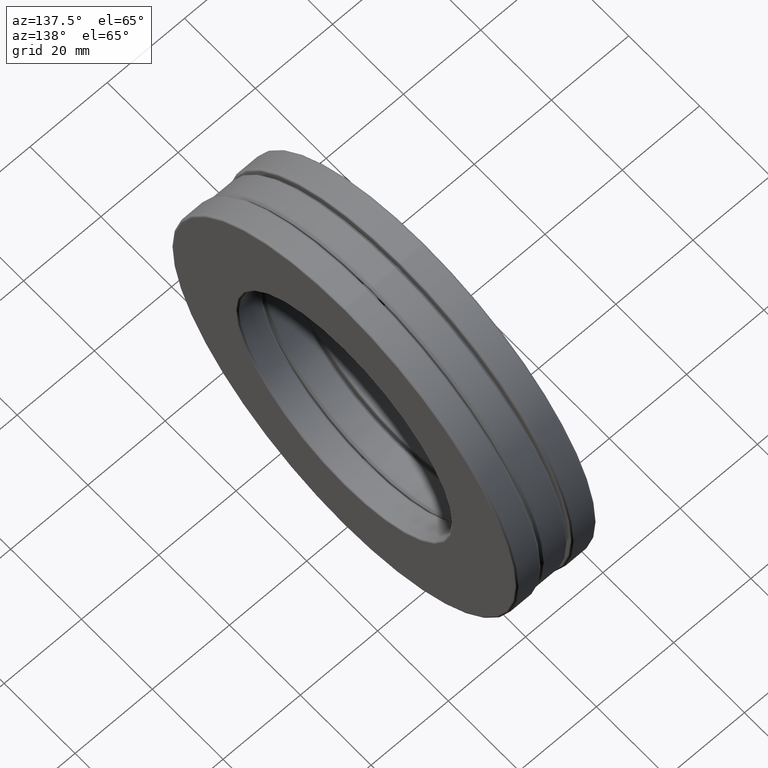
[diagram: clean part render]
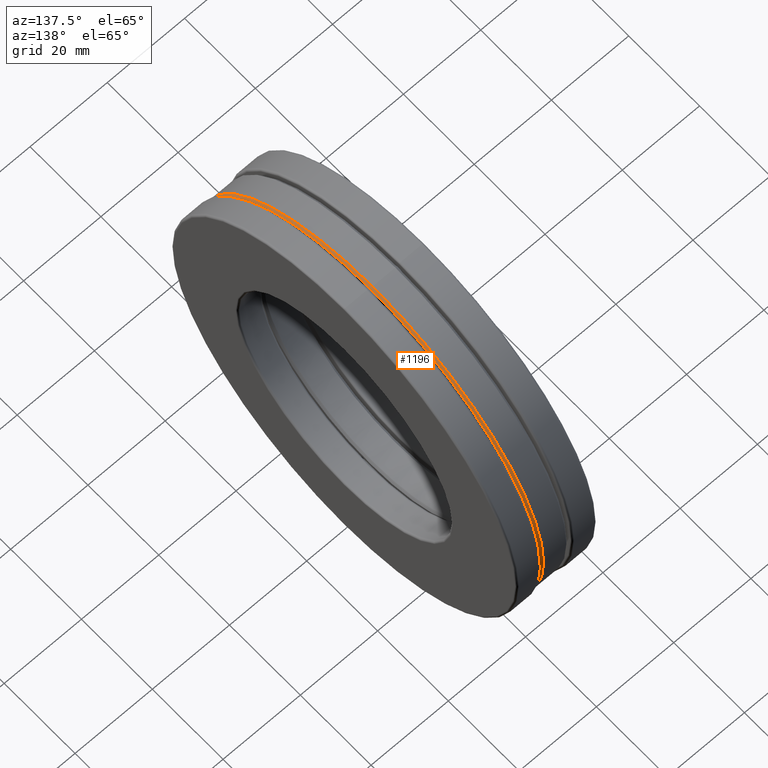
[diagram: same view with one face highlighted and labeled with its STEP entity id]
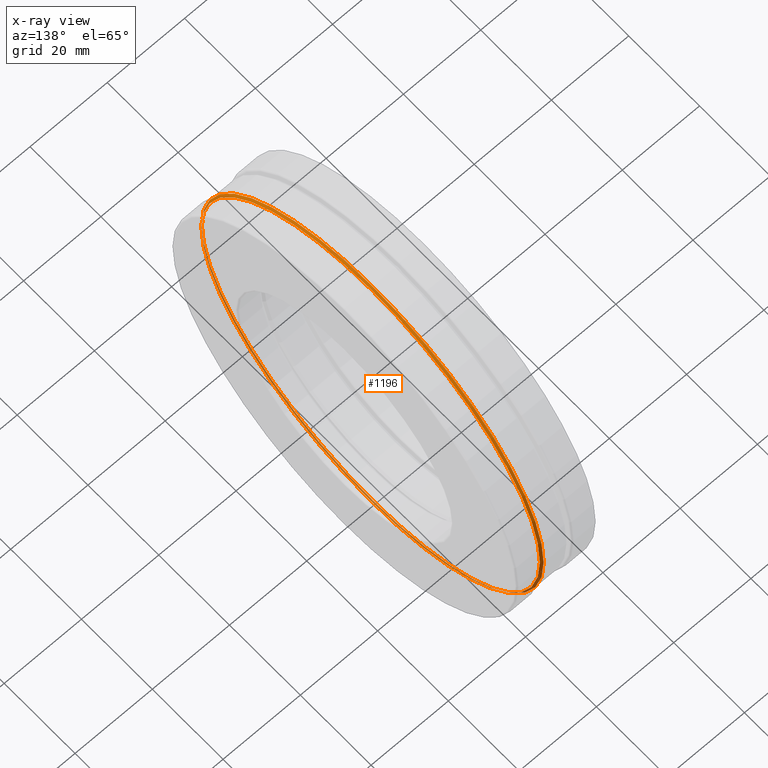
[diagram: x-ray of the same camera — body ghosted, the highlighted face saturated]
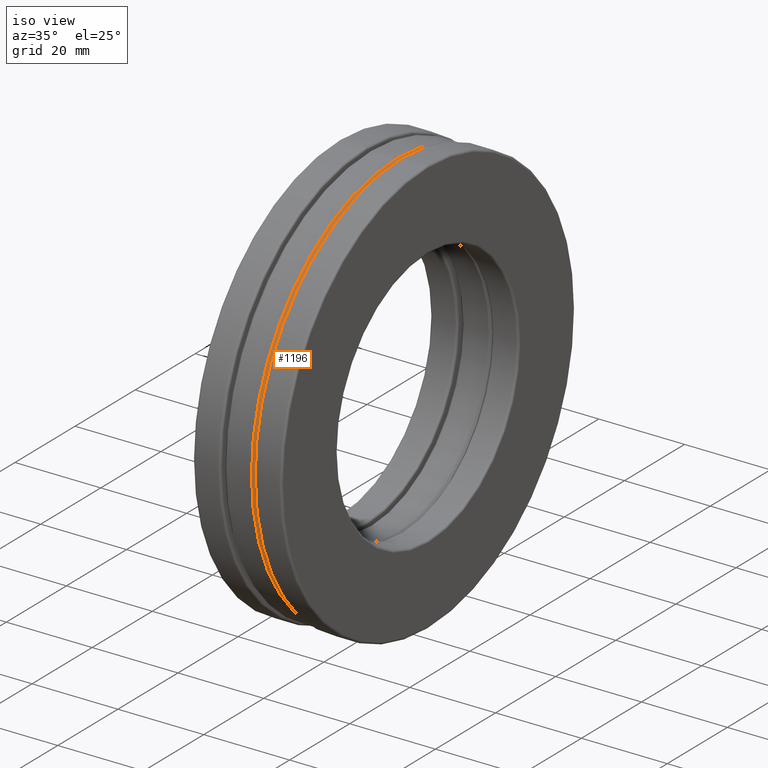
[diagram: same view with one face highlighted and labeled with its STEP entity id]
A machine part, auxiliary view. The second image highlights one B-rep face of the part: STEP entity #1196.
The next image is the same camera in x-ray: the body ghosted, the highlighted face saturated — about 29% of this face is hidden behind the body in this view.
A second angle (iso view) of the same face is appended — the face is thin or edge-on in the first view.
In plain terms, the highlighted conical surface has half-angle 45 deg.
Its self-contained STEP definition (entity closure, byte-faithful):
#85 = CIRCLE ( 'NONE', #1126, 1.881875000000000000 ) ;
#110 = EDGE_LOOP ( 'NONE', ( #945 ) ) ;
#180 = VERTEX_POINT ( 'NONE', #405 ) ;
#181 = EDGE_CURVE ( 'NONE', #1228, #1228, #636, .T. ) ;
#275 = DIRECTION ( 'NONE',  ( 0.0000000000000000000, 0.0000000000000000000, 1.000000000000000000 ) ) ;
#343 = AXIS2_PLACEMENT_3D ( 'NONE', #605, #386, #1299 ) ;
#386 = DIRECTION ( 'NONE',  ( -1.000000000000000000, -0.0000000000000000000, -0.0000000000000000000 ) ) ;
#397 = FACE_OUTER_BOUND ( 'NONE', #1000, .T. ) ;
#401 = ORIENTED_EDGE ( 'NONE', *, *, #181, .F. ) ;
#405 = CARTESIAN_POINT ( 'NONE',  ( 0.1360000000000000100, 0.0000000000000000000, 1.881875000000000000 ) ) ;
#482 = FACE_BOUND ( 'NONE', #110, .T. ) ;
#492 = DIRECTION ( 'NONE',  ( 0.0000000000000000000, 0.0000000000000000000, 1.000000000000000000 ) ) ;
#605 = CARTESIAN_POINT ( 'NONE',  ( 0.1159999999999999800, 0.0000000000000000000, 0.0000000000000000000 ) ) ;
#608 = DIRECTION ( 'NONE',  ( -1.000000000000000000, -0.0000000000000000000, -0.0000000000000000000 ) ) ;
#636 = CIRCLE ( 'NONE', #895, 1.901874999999999800 ) ;
#859 = CARTESIAN_POINT ( 'NONE',  ( 0.1159999999999999800, 0.0000000000000000000, 1.901874999999999800 ) ) ;
#895 = AXIS2_PLACEMENT_3D ( 'NONE', #964, #957, #275 ) ;
#945 = ORIENTED_EDGE ( 'NONE', *, *, #1111, .T. ) ;
#957 = DIRECTION ( 'NONE',  ( -1.000000000000000000, -0.0000000000000000000, -0.0000000000000000000 ) ) ;
#964 = CARTESIAN_POINT ( 'NONE',  ( 0.1159999999999999800, 0.0000000000000000000, 0.0000000000000000000 ) ) ;
#1000 = EDGE_LOOP ( 'NONE', ( #401 ) ) ;
#1019 = CONICAL_SURFACE ( 'NONE', #343, 1.901874999999999800, 0.7853981633974422800 ) ;
#1054 = CARTESIAN_POINT ( 'NONE',  ( 0.1360000000000000100, 0.0000000000000000000, 0.0000000000000000000 ) ) ;
#1111 = EDGE_CURVE ( 'NONE', #180, #180, #85, .T. ) ;
#1126 = AXIS2_PLACEMENT_3D ( 'NONE', #1054, #608, #492 ) ;
#1196 = ADVANCED_FACE ( 'NONE', ( #482, #397 ), #1019, .T. ) ;
#1228 = VERTEX_POINT ( 'NONE', #859 ) ;
#1299 = DIRECTION ( 'NONE',  ( 0.0000000000000000000, 0.0000000000000000000, 1.000000000000000000 ) ) ;